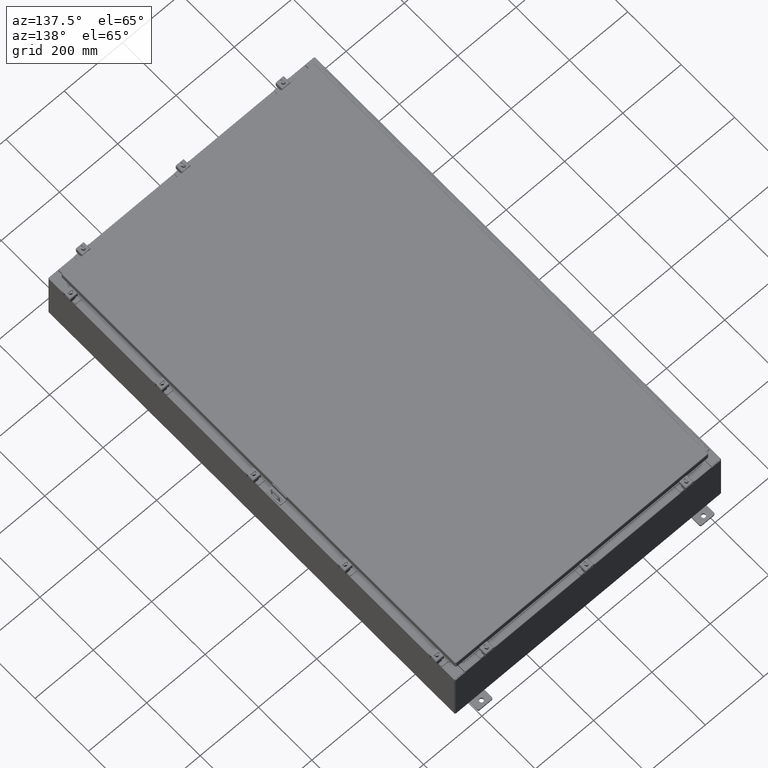
[diagram: clean part render]
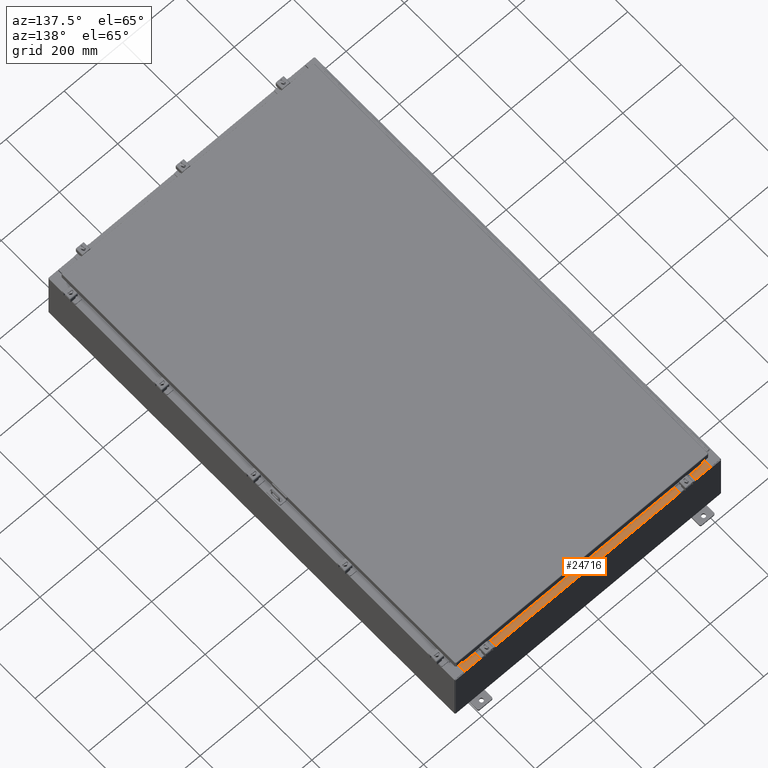
[diagram: same view with one face highlighted and labeled with its STEP entity id]
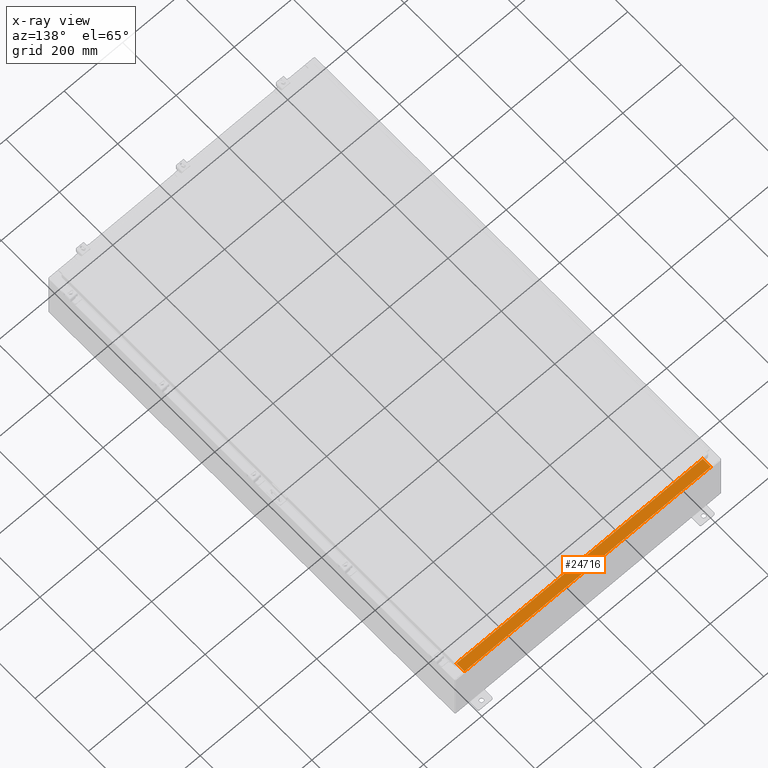
[diagram: x-ray of the same camera — body ghosted, the highlighted face saturated]
A machine part, auxiliary view. The second image highlights one B-rep face of the part: STEP entity #24716.
The next image is the same camera in x-ray: the body ghosted, the highlighted face saturated — about 0% of this face is hidden behind the body in this view.
In plain terms, the highlighted planar face has unit normal (0, 0, 1).
Its self-contained STEP definition (entity closure, byte-faithful):
#1198 = CARTESIAN_POINT ( 'NONE',  ( -16.63719999999999600, -0.07469999999999797600, 4.000000000000000900 ) ) ;
#2262 = DIRECTION ( 'NONE',  ( -0.0000000000000000000, -1.000000000000000000, 3.566381192773190000E-015 ) ) ;
#3059 = ORIENTED_EDGE ( 'NONE', *, *, #25841, .F. ) ;
#3264 = CARTESIAN_POINT ( 'NONE',  ( 16.63720000000000700, -1.287299999999999200, 4.000000000000004400 ) ) ;
#10105 = VERTEX_POINT ( 'NONE', #32171 ) ;
#11885 = LINE ( 'NONE', #40392, #23549 ) ;
#15214 = EDGE_CURVE ( 'NONE', #35631, #10105, #11885, .T. ) ;
#15455 = VECTOR ( 'NONE', #55785, 39.37007874015748100 ) ;
#17021 = LINE ( 'NONE', #1198, #15455 ) ;
#18473 = VECTOR ( 'NONE', #53067, 39.37007874015748100 ) ;
#19456 = ORIENTED_EDGE ( 'NONE', *, *, #56487, .F. ) ;
#21662 = VERTEX_POINT ( 'NONE', #57205 ) ;
#22426 = ORIENTED_EDGE ( 'NONE', *, *, #42393, .F. ) ;
#23549 = VECTOR ( 'NONE', #35435, 39.37007874015748100 ) ;
#24242 = CARTESIAN_POINT ( 'NONE',  ( 16.63720000000000700, -0.08770000000000026400, 4.000000000000000900 ) ) ;
#24443 = PLANE ( 'NONE',  #27702 ) ;
#24716 = ADVANCED_FACE ( 'NONE', ( #42647 ), #24443, .T. ) ;
#25841 = EDGE_CURVE ( 'NONE', #21662, #33216, #31637, .T. ) ;
#27702 = AXIS2_PLACEMENT_3D ( 'NONE', #59198, #64210, #34439 ) ;
#31437 = VECTOR ( 'NONE', #2262, 39.37007874015748100 ) ;
#31637 = LINE ( 'NONE', #3264, #18473 ) ;
#32171 = CARTESIAN_POINT ( 'NONE',  ( -16.63719999999999600, -0.08770000000000026400, 4.000000000000000900 ) ) ;
#33216 = VERTEX_POINT ( 'NONE', #58940 ) ;
#34439 = DIRECTION ( 'NONE',  ( 0.0000000000000000000, -1.000000000000000000, 3.566381192773190000E-015 ) ) ;
#35148 = ORIENTED_EDGE ( 'NONE', *, *, #15214, .T. ) ;
#35435 = DIRECTION ( 'NONE',  ( -1.000000000000000000, 3.284023746380717400E-017, -1.171208052571274300E-031 ) ) ;
#35631 = VERTEX_POINT ( 'NONE', #24242 ) ;
#40392 = CARTESIAN_POINT ( 'NONE',  ( -2.880088610698934900E-018, -0.08770000000000026400, 4.000000000000000900 ) ) ;
#42084 = CARTESIAN_POINT ( 'NONE',  ( 16.63720000000000400, -1.300300000000001300, 4.000000000000004400 ) ) ;
#42393 = EDGE_CURVE ( 'NONE', #35631, #21662, #57864, .T. ) ;
#42647 = FACE_OUTER_BOUND ( 'NONE', #55632, .T. ) ;
#53067 = DIRECTION ( 'NONE',  ( -1.000000000000000000, 0.0000000000000000000, 0.0000000000000000000 ) ) ;
#55632 = EDGE_LOOP ( 'NONE', ( #19456, #3059, #22426, #35148 ) ) ;
#55785 = DIRECTION ( 'NONE',  ( -0.0000000000000000000, 1.000000000000000000, -3.566381192773190000E-015 ) ) ;
#56487 = EDGE_CURVE ( 'NONE', #33216, #10105, #17021, .T. ) ;
#57205 = CARTESIAN_POINT ( 'NONE',  ( 16.63720000000000400, -1.287299999999999200, 4.000000000000004400 ) ) ;
#57864 = LINE ( 'NONE', #42084, #31437 ) ;
#58940 = CARTESIAN_POINT ( 'NONE',  ( -16.63719999999999600, -1.287299999999999200, 4.000000000000004400 ) ) ;
#59198 = CARTESIAN_POINT ( 'NONE',  ( 0.0000000000000000000, 1.311287036958846300E-014, 4.000000000000000900 ) ) ;
#64210 = DIRECTION ( 'NONE',  ( 0.0000000000000000000, 3.566381192773190000E-015, 1.000000000000000000 ) ) ;